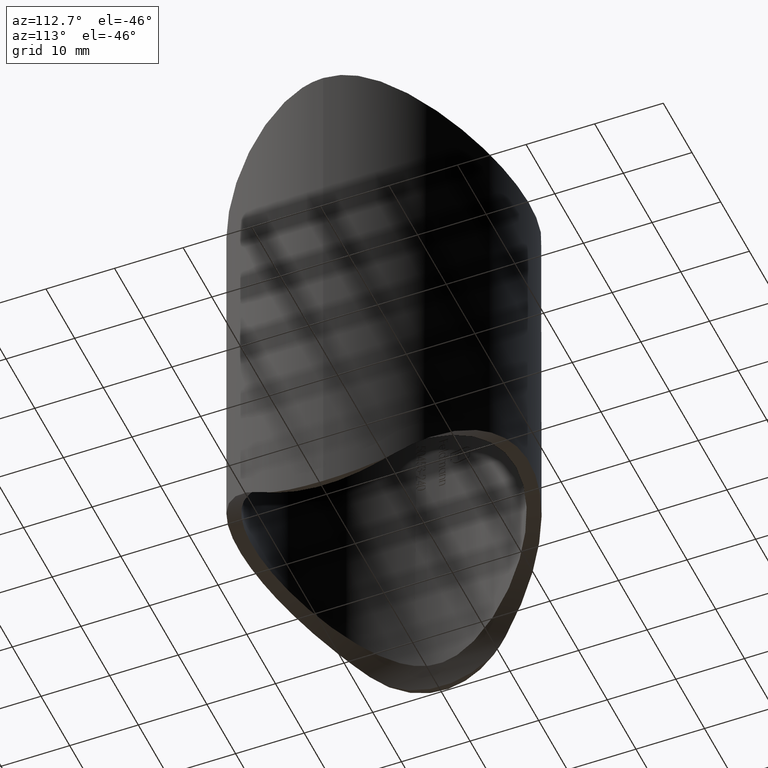
[diagram: clean part render]
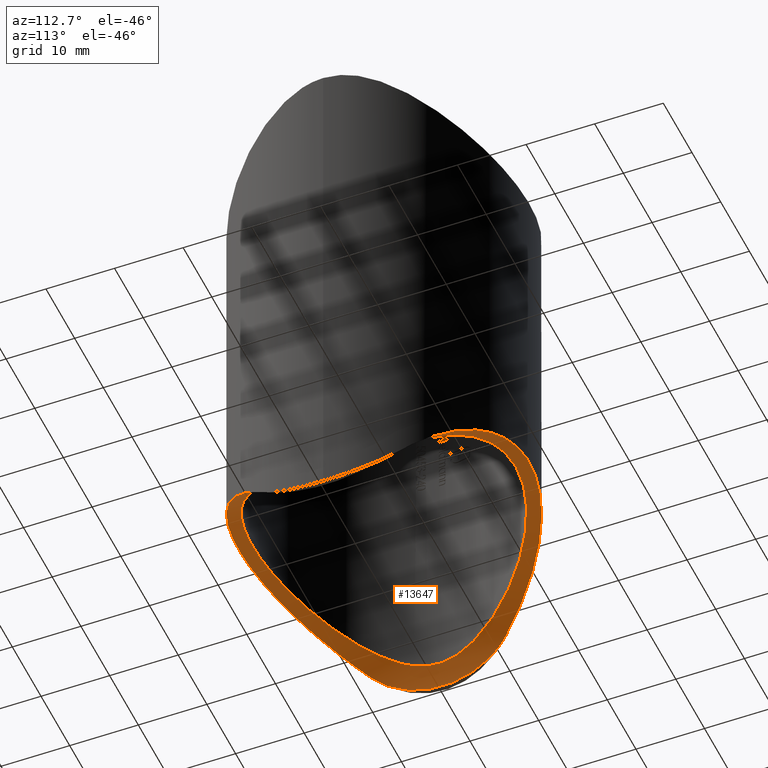
[diagram: same view with one face highlighted and labeled with its STEP entity id]
A machine part, auxiliary view. The second image highlights one B-rep face of the part: STEP entity #13647.
In plain terms, the highlighted cylindrical surface (partial cylindrical patch) has radius 21.2 mm, axis along (-0, 1, -0).
Its self-contained STEP definition (entity closure, byte-faithful):
#41 = CARTESIAN_POINT ( 'NONE',  ( 8.398654318301897348, -17.27780365447571853, -28.19916724003959629 ) ) ;
#60 = CARTESIAN_POINT ( 'NONE',  ( 20.17693010009795529, 4.559925442358322201, -41.15785466287819361 ) ) ;
#86 = CARTESIAN_POINT ( 'NONE',  ( -8.474572113382091487, -17.23148564580043285, -28.23999359589217306 ) ) ;
#106 = CARTESIAN_POINT ( 'NONE',  ( 20.34227642643679701, -2.321053154303240440, -41.70498690696190636 ) ) ;
#132 = CARTESIAN_POINT ( 'NONE',  ( -2.443643506288528222, -19.04692872008506654, -26.61353664016795761 ) ) ;
#243 = CARTESIAN_POINT ( 'NONE',  ( 19.66319140187691161, -7.451040032875111407, -39.74572526258487670 ) ) ;
#283 = EDGE_CURVE ( 'NONE', #7771, #7771, #2613, .T. ) ;
#360 = FACE_OUTER_BOUND ( 'NONE', #12262, .T. ) ;
#655 = CARTESIAN_POINT ( 'NONE',  ( 18.90706247313660882, 3.357367241775079503, -38.08455942971292529 ) ) ;
#788 = CARTESIAN_POINT ( 'NONE',  ( -4.675820080104307053, 18.63412284638751970, -26.98619071109478540 ) ) ;
#834 = CARTESIAN_POINT ( 'NONE',  ( -19.19768964111686316, 0.7507734128340538549, -38.68118325479939301 ) ) ;
#842 = AXIS2_PLACEMENT_3D ( 'NONE', #11272, #10133, #5830 ) ;
#878 = CARTESIAN_POINT ( 'NONE',  ( -14.21628077223434872, 12.91826843625112708, -31.93886162490987246 ) ) ;
#925 = CARTESIAN_POINT ( 'NONE',  ( -17.46097407808106539, -8.006752749065007890, -35.64461238400869547 ) ) ;
#972 = CARTESIAN_POINT ( 'NONE',  ( 8.169117891187497094, 17.37844731876492688, -28.10955209938704868 ) ) ;
#1024 = CARTESIAN_POINT ( 'NONE',  ( 17.20359048519076595, -8.606024147678851932, -35.25835582246245536 ) ) ;
#1070 = CARTESIAN_POINT ( 'NONE',  ( 18.47647750869281680, -5.256769596179189818, -37.27331558427515290 ) ) ;
#1123 = CARTESIAN_POINT ( 'NONE',  ( 16.65531608716841205, -9.622605241787768549, -34.52204477850178677 ) ) ;
#1167 = CARTESIAN_POINT ( 'NONE',  ( -9.044281764903585596, -16.93940487217223989, -28.49848275130080921 ) ) ;
#1215 = CARTESIAN_POINT ( 'NONE',  ( 1.312988904934113465, -19.16757156322100641, -26.50438702764060039 ) ) ;
#1374 = CARTESIAN_POINT ( 'NONE',  ( 19.75622275300699826, -7.063501765326316573, -39.98173256502325046 ) ) ;
#1496 = EDGE_LOOP ( 'NONE', ( #12797 ) ) ;
#1567 = CARTESIAN_POINT ( 'NONE',  ( 19.20000000000000284, 0.000000000000000000, -38.68611797830232035 ) ) ;
#1634 = CARTESIAN_POINT ( 'NONE',  ( -19.08788352126771315, -9.251297983022231719, -38.42370201697777077 ) ) ;
#1753 = CARTESIAN_POINT ( 'NONE',  ( 13.02347594845948109, 14.12053490442673898, -30.93741718849259570 ) ) ;
#1796 = CARTESIAN_POINT ( 'NONE',  ( 18.48716425166828969, 5.218774224539548534, -37.29243574833246555 ) ) ;
#1876 = CARTESIAN_POINT ( 'NONE',  ( 10.12713739048889394, 16.32409401206496113, -29.04025242842998722 ) ) ;
#1921 = CARTESIAN_POINT ( 'NONE',  ( -18.85495752316386842, -3.637885078691899032, -37.98216498159940357 ) ) ;
#1945 = CARTESIAN_POINT ( 'NONE',  ( -20.34227642643681477, 2.321053154303128085, -41.70498690696192057 ) ) ;
#1963 = CARTESIAN_POINT ( 'NONE',  ( -15.33258299572059080, 11.57116703053285534, -33.02515891799237835 ) ) ;
#2010 = CARTESIAN_POINT ( 'NONE',  ( -3.358304395327572855, 18.91601488855650359, -26.73193635585946382 ) ) ;
#2054 = CARTESIAN_POINT ( 'NONE',  ( 19.12466086740323590, -1.732661562638049713, -38.52653619964359422 ) ) ;
#2105 = CARTESIAN_POINT ( 'NONE',  ( 0.6263234070547744059, -19.20197743522317069, -26.47320911676789379 ) ) ;
#2147 = CARTESIAN_POINT ( 'NONE',  ( -14.69639531022576229, -12.41154362510558862, -32.35776585305337250 ) ) ;
#2196 = CARTESIAN_POINT ( 'NONE',  ( 17.89575979321478272, -6.980585629207755716, -36.30152533405081527 ) ) ;
#2242 = CARTESIAN_POINT ( 'NONE',  ( 14.23217492546608476, -12.90078031750658916, -31.95322540879735129 ) ) ;
#2550 = CARTESIAN_POINT ( 'NONE',  ( -18.76061753692396294, 9.873157024643191448, -37.80184297535679860 ) ) ;
#2613 = B_SPLINE_CURVE_WITH_KNOTS ( 'NONE', 3,
 ( #2780, #3754, #13603, #10351, #4905, #655, #8236, #5045, #1796, #3935, #8191, #3848, #11339, #12406, #5999, #11432, #4959, #12502, #1753, #9291, #5180, #4075, #1876, #4170, #12631, #8327, #972, #10619, #6185, #10485, #5088, #6231, #8499, #2989, #13740, #5222, #13784, #7249, #11569, #5268, #2010, #788, #6275, #2911, #10568, #7292, #11652, #12725, #12820, #9430, #13834, #7336, #3981, #878, #8413, #1963, #2949, #7382, #10530, #13931, #9520, #4025, #3026, #11612, #4121, #5133, #834, #8366, #6358, #11695, #9384, #12680, #11736, #12774, #1921, #6318, #9477, #7427, #13881, #925, #8457, #9567, #3077, #10668, #2147, #6455, #7478, #4369, #7574, #3222, #12915, #10768, #1167, #86, #14032, #7628, #5358, #11786, #9710, #10816, #132, #8607, #4273, #2105, #1215, #6500, #5313, #4320, #11970, #12870, #11879, #5404, #9612, #41, #12969, #8659, #6403, #8712, #4215, #2242, #11922, #7524, #13978, #1123, #1024, #2196, #8554, #1070, #9758, #13068, #3275, #2054, #9660, #10913, #10865, #3118 ),
 .UNSPECIFIED., .T., .F.,
 ( 4, 2, 2, 2, 2, 2, 2, 2, 2, 2, 2, 2, 2, 2, 2, 2, 2, 2, 2, 2, 2, 2, 2, 2, 2, 2, 2, 2, 2, 2, 2, 2, 2, 2, 2, 2, 2, 2, 2, 2, 2, 2, 2, 2, 2, 2, 2, 2, 2, 2, 2, 2, 2, 2, 2, 2, 2, 2, 2, 2, 2, 2, 2, 2, 2, 2, 2, 4 ),
 ( 0.000000000000000000, 0.002054033569492825107, 0.003081050354239239612, 0.004108067138985653684, 0.006162100708478480959, 0.008216134277971307368, 0.01027016784746413551, 0.01232420141695696192, 0.01643226855594260780, 0.01848630212543542206, 0.02054033569492823633, 0.02259436926442105059, 0.02362138604916745946, 0.02464840283391386833, 0.02875646997289950380, 0.02978348675764591266, 0.03081050354239232153, 0.03286453711188513926, 0.03389155389663154466, 0.03491857068137795006, 0.03697260425087077473, 0.03902663782036358553, 0.04005365460511000480, 0.04108067138985641714, 0.04313470495934922794, 0.04518873852884205261, 0.04929680566782768114, 0.05135083923732049888, 0.05340487280681330273, 0.05751293994579892432, 0.05956697351529173512, 0.06162100708478453204, 0.06367504065427734283, 0.06572907422377013975, 0.06675609100851653821, 0.06778310779326293667, 0.06881012457800933513, 0.06983714136275571971, 0.07189117493224853050, 0.07394520850174132742, 0.07599924207123412434, 0.07805327564072690738, 0.08216134277971251509, 0.08421537634920528426, 0.08626940991869806730, 0.08832344348819085034, 0.08935046027293724880, 0.09037747705768364725, 0.09448554419666924109, 0.09551256098141563955, 0.09653957776616203801, 0.09859361133565482105, 0.1006476449051476318, 0.1027016784746404288, 0.1047557120441332118, 0.1057827288288796241, 0.1068097456136260087, 0.1088637791831188334, 0.1109178127526116442, 0.1150258798915972380, 0.1170799134610900488, 0.1191339470305828735, 0.1232420141695684812, 0.1252960477390612781, 0.1273500813085540750, 0.1294041148780468720, 0.1304311316627932704, 0.1314581484475396689 ),
 .UNSPECIFIED. ) ;
#2780 = CARTESIAN_POINT ( 'NONE',  ( 19.20000000000000639, -1.138412281109779656E-15, -38.68611797830232746 ) ) ;
#2911 = CARTESIAN_POINT ( 'NONE',  ( -6.270452661708515230, 18.15026646057652471, -27.42086230156492377 ) ) ;
#2933 = CARTESIAN_POINT ( 'NONE',  ( -20.38945489261113408, -0.9208730648770752092, -41.86876081936993188 ) ) ;
#2949 = CARTESIAN_POINT ( 'NONE',  ( -15.67803153170230601, 11.09847307753547341, -33.39639895677012049 ) ) ;
#2989 = CARTESIAN_POINT ( 'NONE',  ( 1.423866269770410087, 19.15925790054939171, -26.51191532490892300 ) ) ;
#3026 = CARTESIAN_POINT ( 'NONE',  ( -18.63179064665984086, 4.680354246637859816, -37.55666199968749908 ) ) ;
#3077 = CARTESIAN_POINT ( 'NONE',  ( -16.36227788616432122, -10.06219331673604955, -34.18610928679083116 ) ) ;
#3118 = CARTESIAN_POINT ( 'NONE',  ( 19.20000000000000639, -1.138412281109779656E-15, -38.68611797830232746 ) ) ;
#3222 = CARTESIAN_POINT ( 'NONE',  ( -10.65911185777682846, -15.98115914200134213, -29.34016872660410158 ) ) ;
#3275 = CARTESIAN_POINT ( 'NONE',  ( 19.01511626616451167, -2.743069616243384523, -38.29984527153219886 ) ) ;
#3295 = CARTESIAN_POINT ( 'NONE',  ( 20.38945489261113053, 0.9208730648769688498, -41.86876081936994609 ) ) ;
#3340 = CARTESIAN_POINT ( 'NONE',  ( 20.39587823593202387, 0.4587775208743916644, -41.89156235429672392 ) ) ;
#3513 =( BOUNDED_CURVE ( )  B_SPLINE_CURVE ( 3, ( #5548, #7756, #9991, #9944 ),
 .UNSPECIFIED., .F., .F. ) 
 B_SPLINE_CURVE_WITH_KNOTS ( ( 4, 4 ),
 ( 5.196831337156892161, 7.369539277202277638 ),
 .UNSPECIFIED. ) 
 CURVE ( )  GEOMETRIC_REPRESENTATION_ITEM ( )  RATIONAL_B_SPLINE_CURVE ( ( 1.000000000000000000, 0.6438099693284029534, 0.6438099693284029534, 1.000000000000000000 ) ) 
 REPRESENTATION_ITEM ( '' )  );
#3523 = EDGE_CURVE ( 'NONE', #10726, #8625, #3513, .T. ) ;
#3709 = FACE_BOUND ( 'NONE', #1496, .T. ) ;
#3722 = B_SPLINE_CURVE_WITH_KNOTS ( 'NONE', 3,
 ( #9274, #1634, #9408, #10594, #4008, #11677, #5027, #11588, #5116, #9316, #13763, #2933, #8349, #6122, #13814, #3919, #1945, #11636, #6301, #13860, #10552, #12749, #7362, #13673, #13718, #12616 ),
 .UNSPECIFIED., .F., .F.,
 ( 4, 2, 2, 2, 2, 2, 2, 2, 2, 2, 2, 2, 4 ),
 ( 1.163687884334659274E-17, 0.002773149001537706087, 0.004159723502306546770, 0.005546298003075387020, 0.008319447004613060581, 0.009706021505381898229, 0.01109259600615073588, 0.01247917050691957526, 0.01386574500768841291, 0.01663889400922608300, 0.01802546850999492065, 0.01941204301076375482, 0.02218519201230140930 ),
 .UNSPECIFIED. ) ;
#3754 = CARTESIAN_POINT ( 'NONE',  ( 19.20000000000000284, 0.6980454448033972525, -38.68611797830232035 ) ) ;
#3809 = EDGE_CURVE ( 'NONE', #8625, #7215, #9507, .T. ) ;
#3848 = CARTESIAN_POINT ( 'NONE',  ( 17.44715800060077981, 8.036817910008428711, -35.62454783208731612 ) ) ;
#3919 = CARTESIAN_POINT ( 'NONE',  ( -20.36262679060556735, 1.856076224686041609, -41.77535881306145882 ) ) ;
#3935 = CARTESIAN_POINT ( 'NONE',  ( 18.11928811322277966, 6.379831090624922041, -36.66299378958626676 ) ) ;
#3981 = CARTESIAN_POINT ( 'NONE',  ( -12.99320831105824681, 14.18427761042543445, -30.88895527214998893 ) ) ;
#4008 = CARTESIAN_POINT ( 'NONE',  ( -19.75742474673856464, -7.058384858471180578, -39.98479947098839915 ) ) ;
#4025 = CARTESIAN_POINT ( 'NONE',  ( -18.46738706875886749, 5.288616479782774604, -37.25713544480090178 ) ) ;
#4075 = CARTESIAN_POINT ( 'NONE',  ( 10.64677686720037109, 15.98933728070449334, -29.33303417098269605 ) ) ;
#4121 = CARTESIAN_POINT ( 'NONE',  ( -19.00922260648844997, 2.784007189479642097, -38.28783879439963300 ) ) ;
#4170 = CARTESIAN_POINT ( 'NONE',  ( 9.310254919828345521, 16.79457926201056495, -28.62631669843540649 ) ) ;
#4215 = CARTESIAN_POINT ( 'NONE',  ( 13.00949465222951140, -14.16943162346804819, -30.90153743211570259 ) ) ;
#4273 = CARTESIAN_POINT ( 'NONE',  ( -0.7422001322744944396, -19.19784772824016983, -26.47694922569104747 ) ) ;
#4296 = CARTESIAN_POINT ( 'NONE',  ( 18.76061753692390965, 9.873157024643191448, -37.80184297535672044 ) ) ;
#4320 = CARTESIAN_POINT ( 'NONE',  ( 4.684179666416937948, -18.63206591631571740, -26.98804399136355414 ) ) ;
#4342 = CARTESIAN_POINT ( 'NONE',  ( 19.66417750654735030, 7.447262411945215099, -39.74815048688842012 ) ) ;
#4369 = CARTESIAN_POINT ( 'NONE',  ( -12.13030572889498870, -14.89491825025898386, -30.27915846920977216 ) ) ;
#4905 = CARTESIAN_POINT ( 'NONE',  ( 19.01128167798045254, 2.705567430266663465, -38.29285042456776011 ) ) ;
#4959 = CARTESIAN_POINT ( 'NONE',  ( 14.68253438281442769, 12.42803938818136800, -32.34438051930040814 ) ) ;
#5027 = CARTESIAN_POINT ( 'NONE',  ( -19.99387218558454649, -5.831450767503524979, -40.62372366667842272 ) ) ;
#5045 = CARTESIAN_POINT ( 'NONE',  ( 18.64699877288243357, 4.619522538329481343, -37.58481063771146324 ) ) ;
#5088 = CARTESIAN_POINT ( 'NONE',  ( 3.452516812799231172, 18.89012749361761223, -26.75524016003466699 ) ) ;
#5116 = CARTESIAN_POINT ( 'NONE',  ( -20.26031641606494915, -3.679089128837657263, -41.43026442626688777 ) ) ;
#5133 = CARTESIAN_POINT ( 'NONE',  ( -19.15842051168933580, 1.433932924298455314, -38.59621907411344210 ) ) ;
#5176 =( BOUNDED_CURVE ( )  B_SPLINE_CURVE ( 3, ( #7409, #9593, #10895, #12946 ),
 .UNSPECIFIED., .F., .F. ) 
 B_SPLINE_CURVE_WITH_KNOTS ( ( 4, 4 ),
 ( 5.196831337156896602, 7.369539277202275862 ),
 .UNSPECIFIED. ) 
 CURVE ( )  GEOMETRIC_REPRESENTATION_ITEM ( )  RATIONAL_B_SPLINE_CURVE ( ( 1.000000000000000000, 0.6438099693284047298, 0.6438099693284047298, 1.000000000000000000 ) ) 
 REPRESENTATION_ITEM ( '' )  );
#5180 = CARTESIAN_POINT ( 'NONE',  ( 11.64113529176941064, 15.28059990493830256, -29.94746386968817120 ) ) ;
#5222 = CARTESIAN_POINT ( 'NONE',  ( -0.2820824081243014092, 19.20097031812725774, -26.47412122211959584 ) ) ;
#5268 = CARTESIAN_POINT ( 'NONE',  ( -2.686278404013890508, 19.02367343569139990, -26.63458142784235605 ) ) ;
#5313 = CARTESIAN_POINT ( 'NONE',  ( 3.364464735285421781, -18.91496223898500517, -26.73288775945573192 ) ) ;
#5358 = CARTESIAN_POINT ( 'NONE',  ( -5.450650170352560053, -18.45984008691819866, -27.14332090573930500 ) ) ;
#5379 = VERTEX_POINT ( 'NONE', #7138 ) ;
#5404 = CARTESIAN_POINT ( 'NONE',  ( 7.208878613172656102, -17.79834022154435047, -27.73563975332180220 ) ) ;
#5548 = CARTESIAN_POINT ( 'NONE',  ( -18.76061753692396294, 9.873157024643191448, -37.80184297535679860 ) ) ;
#5673 = CARTESIAN_POINT ( 'NONE',  ( 18.76061753692390965, -9.873157024643271384, -37.80184297535672044 ) ) ;
#5716 = CARTESIAN_POINT ( 'NONE',  ( 19.08791189949942080, -9.251244059727973479, -38.42375594027203789 ) ) ;
#5830 = DIRECTION ( 'NONE',  ( 0.000000000000000000, 0.000000000000000000, 1.000000000000000000 ) ) ;
#5999 = CARTESIAN_POINT ( 'NONE',  ( 16.34918993274999011, 10.08338983018882296, -34.17026425705245885 ) ) ;
#6097 = CYLINDRICAL_SURFACE ( 'NONE', #842, 21.19999999999999929 ) ;
#6122 = CARTESIAN_POINT ( 'NONE',  ( -20.39580771856956787, 0.4662846249659829967, -41.89131367345686385 ) ) ;
#6169 = EDGE_CURVE ( 'NONE', #5379, #10726, #3722, .T. ) ;
#6185 = CARTESIAN_POINT ( 'NONE',  ( 5.444637067902649008, 18.46167595040267173, -27.14166941041637671 ) ) ;
#6231 = CARTESIAN_POINT ( 'NONE',  ( 2.778085530669774261, 19.00102707361032373, -26.65504603028894692 ) ) ;
#6275 = CARTESIAN_POINT ( 'NONE',  ( -5.321300936734724374, 18.45986871652484496, -27.14311167232077082 ) ) ;
#6301 = CARTESIAN_POINT ( 'NONE',  ( -20.17645972239829177, 4.564575249491445774, -41.15634325171434682 ) ) ;
#6318 = CARTESIAN_POINT ( 'NONE',  ( -18.65612771096560962, -4.582949161454095588, -37.60172871361409364 ) ) ;
#6358 = CARTESIAN_POINT ( 'NONE',  ( -19.19273037613744748, -0.6313044509750597166, -38.67051227889624698 ) ) ;
#6403 = CARTESIAN_POINT ( 'NONE',  ( 10.59320340654815951, -16.02518520412174041, -29.30178819635870013 ) ) ;
#6455 = CARTESIAN_POINT ( 'NONE',  ( -13.47446778062466244, -13.69037364709192772, -31.29912926633789283 ) ) ;
#6475 = CARTESIAN_POINT ( 'NONE',  ( 19.08788352126770604, 9.251297983022139348, -38.42370201697777787 ) ) ;
#6500 = CARTESIAN_POINT ( 'NONE',  ( 2.690703496787361093, -19.02313996657898088, -26.63506396914933561 ) ) ;
#6521 = CARTESIAN_POINT ( 'NONE',  ( 19.99387218558453228, 5.831450767503431720, -40.62372366667844403 ) ) ;
#6619 = CARTESIAN_POINT ( 'NONE',  ( 20.17645972239826690, -4.564575249491563902, -41.15634325171431840 ) ) ;
#6708 = CARTESIAN_POINT ( 'NONE',  ( 19.99287244450449563, -5.837696718642707339, -40.62087676598606834 ) ) ;
#6830 = ORIENTED_EDGE ( 'NONE', *, *, #3809, .T. ) ;
#7115 = ORIENTED_EDGE ( 'NONE', *, *, #6169, .T. ) ;
#7138 = CARTESIAN_POINT ( 'NONE',  ( -18.76061753692392386, -9.873157024643271384, -37.80184297535672044 ) ) ;
#7215 = VERTEX_POINT ( 'NONE', #12201 ) ;
#7249 = CARTESIAN_POINT ( 'NONE',  ( -1.311374818161331612, 19.15824865959787715, -26.51280640915375031 ) ) ;
#7292 = CARTESIAN_POINT ( 'NONE',  ( -7.198569797931742897, 17.80249585910716092, -27.73192965029836898 ) ) ;
#7336 = CARTESIAN_POINT ( 'NONE',  ( -12.09154761544726675, 14.96516876392830575, -30.22132442703108524 ) ) ;
#7362 = CARTESIAN_POINT ( 'NONE',  ( -19.66319140187692582, 7.451040032874993280, -39.74572526258491223 ) ) ;
#7382 = CARTESIAN_POINT ( 'NONE',  ( -16.64054650988334316, 9.647762502245498695, -34.50348931612181502 ) ) ;
#7409 = CARTESIAN_POINT ( 'NONE',  ( 18.76061753692390965, -9.873157024643271384, -37.80184297535672044 ) ) ;
#7427 = CARTESIAN_POINT ( 'NONE',  ( -18.13040550415288266, -6.348281643390508044, -36.68133268330364416 ) ) ;
#7478 = CARTESIAN_POINT ( 'NONE',  ( -13.04020983730995731, -14.10517047600933260, -30.95039097498080594 ) ) ;
#7524 = CARTESIAN_POINT ( 'NONE',  ( 15.34714830805692465, -11.55184783462140530, -33.04042461268523567 ) ) ;
#7574 = CARTESIAN_POINT ( 'NONE',  ( -11.65467948375182239, -15.27031627863634355, -29.95633330209327738 ) ) ;
#7628 = CARTESIAN_POINT ( 'NONE',  ( -6.700160948188026211, -18.03992347028207632, -27.52110903543232823 ) ) ;
#7738 = CARTESIAN_POINT ( 'NONE',  ( 19.34721400711276118, -8.567733199941123701, -38.99034191599908894 ) ) ;
#7756 = CARTESIAN_POINT ( 'NONE',  ( -9.713330760469776948, 27.06448564792726685, -20.61051435207272675 ) ) ;
#7771 = VERTEX_POINT ( 'NONE', #1567 ) ;
#7927 = CARTESIAN_POINT ( 'NONE',  ( 18.76061753692390965, 9.873157024643191448, -37.80184297535672044 ) ) ;
#8191 = CARTESIAN_POINT ( 'NONE',  ( 17.91115840603066545, 6.941481756126492542, -36.32567736368569200 ) ) ;
#8236 = CARTESIAN_POINT ( 'NONE',  ( 18.84686994629927526, 3.679419948413718888, -37.96644117914707550 ) ) ;
#8327 = CARTESIAN_POINT ( 'NONE',  ( 8.461257111318918334, 17.23803310467493688, -28.23418803841608593 ) ) ;
#8349 = CARTESIAN_POINT ( 'NONE',  ( -20.39587823593203808, -0.4587775208744986344, -41.89156235429672392 ) ) ;
#8366 = CARTESIAN_POINT ( 'NONE',  ( -19.20100689606107736, -0.2829686306484001657, -38.68826861544537365 ) ) ;
#8413 = CARTESIAN_POINT ( 'NONE',  ( -14.60214320091708018, 12.48028131530141493, -32.29698455623580600 ) ) ;
#8457 = CARTESIAN_POINT ( 'NONE',  ( -17.20627023850925141, -8.539499068212661470, -35.28176616164278556 ) ) ;
#8499 = CARTESIAN_POINT ( 'NONE',  ( 2.440102494965023183, 19.04736305706262200, -26.61314379396057461 ) ) ;
#8554 = CARTESIAN_POINT ( 'NONE',  ( 18.10457226352766469, -6.421706227417335988, -36.63870882187906375 ) ) ;
#8607 = CARTESIAN_POINT ( 'NONE',  ( -1.424156016817722747, -19.15931440983922229, -26.51186437662756035 ) ) ;
#8625 = VERTEX_POINT ( 'NONE', #7927 ) ;
#8659 = CARTESIAN_POINT ( 'NONE',  ( 10.06396289217453166, -16.36321880414066854, -29.00596403281190661 ) ) ;
#8679 = CARTESIAN_POINT ( 'NONE',  ( 20.26031641606493494, 3.679089128837554235, -41.43026442626688777 ) ) ;
#8712 = CARTESIAN_POINT ( 'NONE',  ( 12.10729353764916993, -14.95270945845004995, -30.23203795884800371 ) ) ;
#8730 = CARTESIAN_POINT ( 'NONE',  ( 20.39580771856955010, -0.4662846249660924647, -41.89131367345684964 ) ) ;
#9274 = CARTESIAN_POINT ( 'NONE',  ( -18.76061753692392386, -9.873157024643271384, -37.80184297535672044 ) ) ;
#9291 = CARTESIAN_POINT ( 'NONE',  ( 12.11583388925274107, 14.90660930377096527, -30.26913393938107077 ) ) ;
#9316 = CARTESIAN_POINT ( 'NONE',  ( -20.34295331472527479, -2.307798460323295053, -41.70729220293606687 ) ) ;
#9384 = CARTESIAN_POINT ( 'NONE',  ( -19.13094863911730670, -1.661419031208813957, -38.53972166869122873 ) ) ;
#9408 = CARTESIAN_POINT ( 'NONE',  ( -19.34758112686971643, -8.567017806956734205, -38.99108467399204869 ) ) ;
#9430 = CARTESIAN_POINT ( 'NONE',  ( -10.05073706922912891, 16.37132824232326911, -28.99885291081797334 ) ) ;
#9477 = CARTESIAN_POINT ( 'NONE',  ( -18.49689606922445151, -5.184314744798500740, -37.30981015033860615 ) ) ;
#9507 = B_SPLINE_CURVE_WITH_KNOTS ( 'NONE', 3,
 ( #4296, #6475, #10833, #4342, #11895, #12987, #6521, #60, #8679, #9778, #13090, #3295, #3340, #8730, #13041, #11986, #106, #9826, #6619, #6708, #12041, #1374, #243, #7738, #5716, #5673 ),
 .UNSPECIFIED., .F., .F.,
 ( 4, 2, 2, 2, 2, 2, 2, 2, 2, 2, 2, 2, 4 ),
 ( 0.000000000000000000, 0.002773149001537689607, 0.004159723502306528556, 0.005546298003075367071, 0.008319447004613051908, 0.009706021505381893025, 0.01109259600615072894, 0.01247917050691957006, 0.01386574500768840944, 0.01663889400922608647, 0.01802546850999492759, 0.01941204301076376870, 0.02218519201230145441 ),
 .UNSPECIFIED. ) ;
#9520 = CARTESIAN_POINT ( 'NONE',  ( -18.09347301264858743, 6.452912811912902669, -36.62047507224335163 ) ) ;
#9567 = CARTESIAN_POINT ( 'NONE',  ( -16.65739973868151225, -9.566076196768820594, -34.55329986478182747 ) ) ;
#9593 = CARTESIAN_POINT ( 'NONE',  ( 9.713330760469684577, -27.06448564792724554, -20.61051435207275162 ) ) ;
#9612 = CARTESIAN_POINT ( 'NONE',  ( 7.510638415796942802, -17.67301004236097484, -27.84745162406040464 ) ) ;
#9660 = CARTESIAN_POINT ( 'NONE',  ( 19.15289063552214088, -1.387955394875724835, -38.58606626256590033 ) ) ;
#9710 = CARTESIAN_POINT ( 'NONE',  ( -3.460241842590379147, -18.88874107712624451, -26.75649223259233978 ) ) ;
#9758 = CARTESIAN_POINT ( 'NONE',  ( 18.64047274022155776, -4.645995901079159829, -37.57269699879557123 ) ) ;
#9778 = CARTESIAN_POINT ( 'NONE',  ( 20.34295331472526058, 2.307798460323192025, -41.70729220293606687 ) ) ;
#9826 = CARTESIAN_POINT ( 'NONE',  ( 20.25969573695243753, -3.685270639212482990, -41.42825726409655118 ) ) ;
#9944 = CARTESIAN_POINT ( 'NONE',  ( 18.76061753692390965, 9.873157024643191448, -37.80184297535672044 ) ) ;
#9991 = CARTESIAN_POINT ( 'NONE',  ( 9.713330760469689906, 27.06448564792730593, -20.61051435207269478 ) ) ;
#10076 = ORIENTED_EDGE ( 'NONE', *, *, #12671, .T. ) ;
#10118 = ORIENTED_EDGE ( 'NONE', *, *, #3523, .T. ) ;
#10133 = DIRECTION ( 'NONE',  ( -0.000000000000000000, 1.000000000000000000, -0.000000000000000000 ) ) ;
#10351 = CARTESIAN_POINT ( 'NONE',  ( 19.05529986142776622, 2.376455867120495391, -38.38294648949721477 ) ) ;
#10485 = CARTESIAN_POINT ( 'NONE',  ( 3.789666982896670699, 18.82533588385400591, -26.81373726790161527 ) ) ;
#10530 = CARTESIAN_POINT ( 'NONE',  ( -17.18954555117545979, 8.633893503348431864, -35.23884205991959107 ) ) ;
#10552 = CARTESIAN_POINT ( 'NONE',  ( -19.92114127073032392, 6.256956426653078829, -40.41946199347621871 ) ) ;
#10568 = CARTESIAN_POINT ( 'NONE',  ( -6.584345212806410608, 18.03869906805409684, -27.52079795111112759 ) ) ;
#10594 = CARTESIAN_POINT ( 'NONE',  ( -19.66417750654735030, -7.447262411945301253, -39.74815048688841301 ) ) ;
#10619 = CARTESIAN_POINT ( 'NONE',  ( 6.692009581848357591, 18.04260793388173312, -27.51869015657987561 ) ) ;
#10668 = CARTESIAN_POINT ( 'NONE',  ( -15.41321299991835936, -11.50653522520417660, -33.08698758545234853 ) ) ;
#10726 = VERTEX_POINT ( 'NONE', #2550 ) ;
#10768 = CARTESIAN_POINT ( 'NONE',  ( -9.322606805230240212, -16.78772625623479442, -28.63235897326290669 ) ) ;
#10816 = CARTESIAN_POINT ( 'NONE',  ( -2.782897158279233008, -19.00034990452467554, -26.65565833022477449 ) ) ;
#10833 = CARTESIAN_POINT ( 'NONE',  ( 19.34758112686969156, 8.567017806956645387, -38.99108467399203448 ) ) ;
#10865 = CARTESIAN_POINT ( 'NONE',  ( 19.20000000000000995, -0.3490227224016952956, -38.68611797830232746 ) ) ;
#10895 = CARTESIAN_POINT ( 'NONE',  ( -9.713330760469684577, -27.06448564792724554, -20.61051435207275517 ) ) ;
#10913 = CARTESIAN_POINT ( 'NONE',  ( 19.19045485382234517, -0.6971960827792539339, -38.66565048501580293 ) ) ;
#11272 = CARTESIAN_POINT ( 'NONE',  ( -6.617685140892510666E-15, -21.19999999999999929, -47.67499999999999716 ) ) ;
#11339 = CARTESIAN_POINT ( 'NONE',  ( 17.19296700203068795, 8.566131912015482186, -35.26334553073282052 ) ) ;
#11432 = CARTESIAN_POINT ( 'NONE',  ( 15.39991665134729715, 11.52413184714196071, -33.07300825546496270 ) ) ;
#11569 = CARTESIAN_POINT ( 'NONE',  ( -1.656754352060753499, 19.13149826019524724, -26.53702489934774889 ) ) ;
#11588 = CARTESIAN_POINT ( 'NONE',  ( -20.17693010009798016, -4.559925442358419012, -41.15785466287820782 ) ) ;
#11612 = CARTESIAN_POINT ( 'NONE',  ( -18.90203703803804203, 3.429625983634456698, -38.07097051221898454 ) ) ;
#11636 = CARTESIAN_POINT ( 'NONE',  ( -20.25969573695246595, 3.685270639212369304, -41.42825726409657250 ) ) ;
#11652 = CARTESIAN_POINT ( 'NONE',  ( -7.499712883759804605, 17.67763751301265529, -27.84332621775005023 ) ) ;
#11677 = CARTESIAN_POINT ( 'NONE',  ( -19.92273603680926541, -6.248382602338642400, -40.42382039892342505 ) ) ;
#11695 = CARTESIAN_POINT ( 'NONE',  ( -19.15757687251268138, -1.321625126386672289, -38.59596113102362125 ) ) ;
#11736 = CARTESIAN_POINT ( 'NONE',  ( -19.01744062171366068, -2.661966636010328013, -38.30535800488134157 ) ) ;
#11786 = CARTESIAN_POINT ( 'NONE',  ( -3.796836483337466372, -18.82388742863525621, -26.81504440739082895 ) ) ;
#11879 = CARTESIAN_POINT ( 'NONE',  ( 6.593138562901270205, -18.03550302574580400, -27.52365905710857774 ) ) ;
#11895 = CARTESIAN_POINT ( 'NONE',  ( 19.75742474673855043, 7.058384858471091761, -39.98479947098839915 ) ) ;
#11922 = CARTESIAN_POINT ( 'NONE',  ( 14.61769633785418598, -12.46206657653642402, -32.31177404544287413 ) ) ;
#11970 = CARTESIAN_POINT ( 'NONE',  ( 5.330123049953486181, -18.45732410971078963, -27.14540011375620310 ) ) ;
#11986 = CARTESIAN_POINT ( 'NONE',  ( 20.36262679060554959, -1.856076224686157072, -41.77535881306145882 ) ) ;
#12041 = CARTESIAN_POINT ( 'NONE',  ( 19.92114127073029906, -6.256956426653197845, -40.41946199347620450 ) ) ;
#12201 = CARTESIAN_POINT ( 'NONE',  ( 18.76061753692390965, -9.873157024643271384, -37.80184297535672044 ) ) ;
#12262 = EDGE_LOOP ( 'NONE', ( #10118, #6830, #10076, #7115 ) ) ;
#12406 = CARTESIAN_POINT ( 'NONE',  ( 16.64426761692454804, 9.588800016851063646, -34.53667299487512565 ) ) ;
#12502 = CARTESIAN_POINT ( 'NONE',  ( 13.45799223950704082, 13.70659292514179128, -31.28556369875699872 ) ) ;
#12616 = CARTESIAN_POINT ( 'NONE',  ( -18.76061753692396294, 9.873157024643191448, -37.80184297535679860 ) ) ;
#12631 = CARTESIAN_POINT ( 'NONE',  ( 9.031708078415510599, 16.94611773852636460, -28.49255253321951287 ) ) ;
#12671 = EDGE_CURVE ( 'NONE', #7215, #5379, #5176, .T. ) ;
#12680 = CARTESIAN_POINT ( 'NONE',  ( -19.06088155016498931, -2.331588205577293849, -38.39441270427330011 ) ) ;
#12725 = CARTESIAN_POINT ( 'NONE',  ( -8.386241066589560589, 17.28378448992773286, -28.19385849980300307 ) ) ;
#12749 = CARTESIAN_POINT ( 'NONE',  ( -19.75622275300701247, 7.063501765326195780, -39.98173256502325756 ) ) ;
#12774 = CARTESIAN_POINT ( 'NONE',  ( -18.91461802903754830, -3.314564675375171188, -38.09948624184040256 ) ) ;
#12797 = ORIENTED_EDGE ( 'NONE', *, *, #283, .T. ) ;
#12820 = CARTESIAN_POINT ( 'NONE',  ( -8.954777025714300009, 16.99557802701653841, -28.44929444334283986 ) ) ;
#12870 = CARTESIAN_POINT ( 'NONE',  ( 6.279156697292874512, -18.14725729760509765, -27.42355901484862102 ) ) ;
#12915 = CARTESIAN_POINT ( 'NONE',  ( -10.13918899252688810, -16.31661265614350498, -29.04680775689161010 ) ) ;
#12946 = CARTESIAN_POINT ( 'NONE',  ( -18.76061753692392386, -9.873157024643271384, -37.80184297535672044 ) ) ;
#12969 = CARTESIAN_POINT ( 'NONE',  ( 8.967701347625599340, -16.98877898105225270, -28.45530734951719509 ) ) ;
#12987 = CARTESIAN_POINT ( 'NONE',  ( 19.92273603680925476, 6.248382602338553582, -40.42382039892341083 ) ) ;
#13041 = CARTESIAN_POINT ( 'NONE',  ( 20.38931492496991638, -0.9292511964851513095, -41.86826487270966624 ) ) ;
#13068 = CARTESIAN_POINT ( 'NONE',  ( 18.90928350748777120, -3.389911374245378362, -38.08527908953873009 ) ) ;
#13090 = CARTESIAN_POINT ( 'NONE',  ( 20.36306835436132090, 1.844182548596922322, -41.77688746834073186 ) ) ;
#13603 = CARTESIAN_POINT ( 'NONE',  ( 19.16216525528441750, 1.378188636715936166, -38.60426310969862840 ) ) ;
#13647 = ADVANCED_FACE ( 'NONE', ( #3709, #360 ), #6097, .F. ) ;
#13673 = CARTESIAN_POINT ( 'NONE',  ( -19.34721400711278250, 8.567733199941006461, -38.99034191599911026 ) ) ;
#13718 = CARTESIAN_POINT ( 'NONE',  ( -19.08791189949943501, 9.251244059727882885, -38.42375594027203789 ) ) ;
#13740 = CARTESIAN_POINT ( 'NONE',  ( 0.7433319518265218973, 19.19778070975139883, -26.47700992153250255 ) ) ;
#13763 = CARTESIAN_POINT ( 'NONE',  ( -20.36306835436132090, -1.844182548597026683, -41.77688746834071054 ) ) ;
#13784 = CARTESIAN_POINT ( 'NONE',  ( -0.6246574897507892743, 19.19291532407699563, -26.48141737434042753 ) ) ;
#13814 = CARTESIAN_POINT ( 'NONE',  ( -20.38931492496993769, 0.9292511964850392880, -41.86826487270966624 ) ) ;
#13834 = CARTESIAN_POINT ( 'NONE',  ( -10.58062860615426182, 16.03342596783361174, -29.29459257838933084 ) ) ;
#13860 = CARTESIAN_POINT ( 'NONE',  ( -19.99287244450450984, 5.837696718642585658, -40.62087676598606834 ) ) ;
#13881 = CARTESIAN_POINT ( 'NONE',  ( -17.92305133272228446, -6.910711704642336528, -36.34450694492877432 ) ) ;
#13931 = CARTESIAN_POINT ( 'NONE',  ( -17.88379602546202207, 7.011133149530357933, -36.28270151105099472 ) ) ;
#13978 = CARTESIAN_POINT ( 'NONE',  ( 15.69229226241623820, -11.07837916626815655, -33.41204414202762507 ) ) ;
#14032 = CARTESIAN_POINT ( 'NONE',  ( -8.182210647319436703, -17.37230888927753369, -28.11500520751988219 ) ) ;